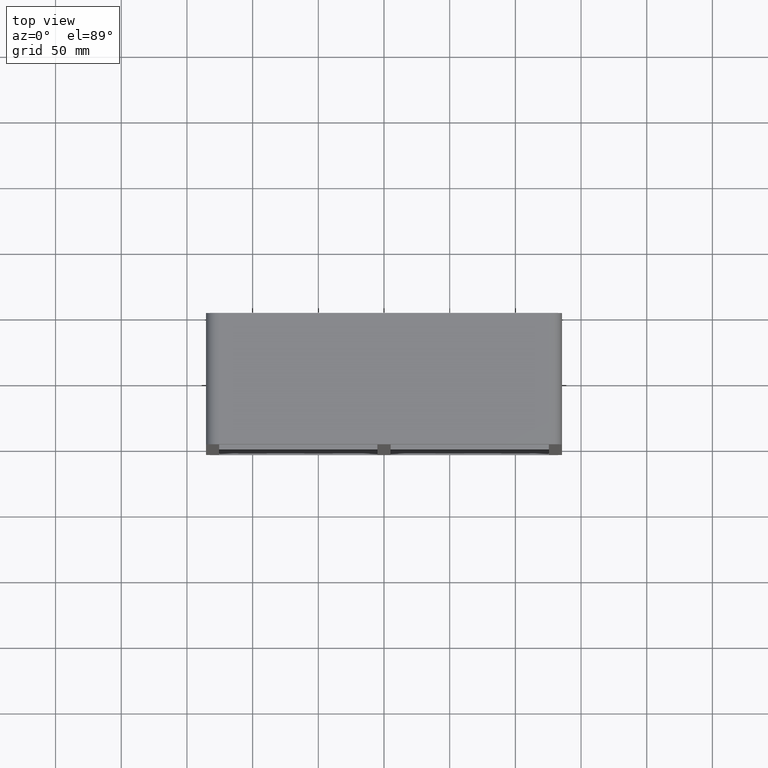
[diagram: clean part render]
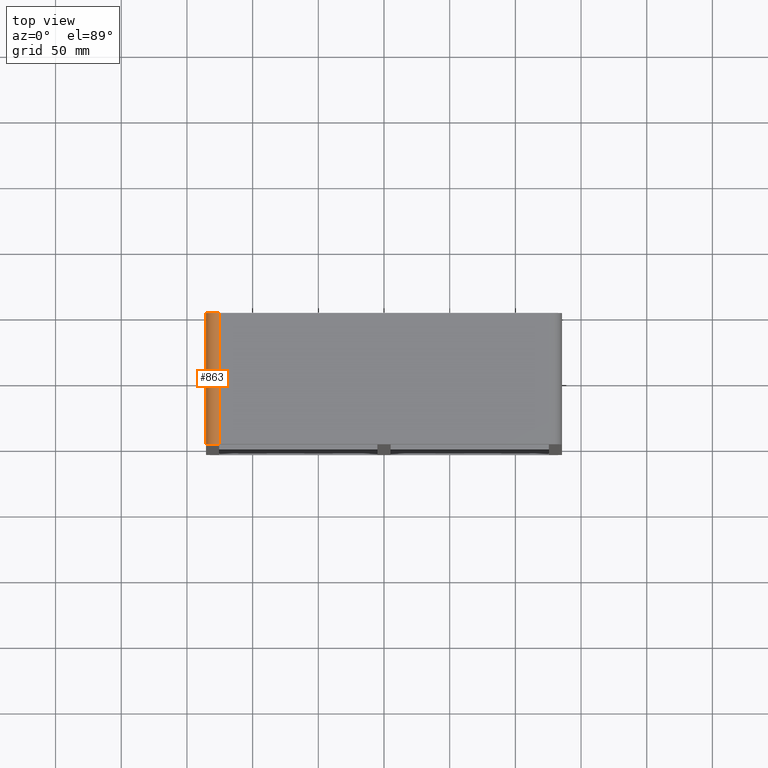
[diagram: same view with one face highlighted and labeled with its STEP entity id]
A machine part, top view. The second image highlights one B-rep face of the part: STEP entity #863.
In plain terms, the highlighted cylindrical surface (edge-blend (fillet) strip) has radius 10 mm, axis along (0, 1, 0).
Its self-contained STEP definition (entity closure, byte-faithful):
#337=CARTESIAN_POINT('',(-135.5,97.0,228.0));
#338=VERTEX_POINT('',#337);
#345=CARTESIAN_POINT('',(-125.5,97.0,238.0));
#346=VERTEX_POINT('',#345);
#347=CARTESIAN_POINT('',(-125.5,97.0,228.0));
#348=DIRECTION('',(0.0,-1.0,0.0));
#349=DIRECTION('',(-0.707106781186547,0.0,0.707106781186547));
#350=AXIS2_PLACEMENT_3D('',#347,#348,#349);
#351=CIRCLE('',#350,9.999999999999998);
#352=EDGE_CURVE('',#346,#338,#351,.T.);
#719=CARTESIAN_POINT('',(-125.5,-3.0,238.0));
#720=VERTEX_POINT('',#719);
#727=CARTESIAN_POINT('',(-135.5,-3.0,228.0));
#728=VERTEX_POINT('',#727);
#729=CARTESIAN_POINT('',(-125.5,-3.0,228.0));
#730=DIRECTION('',(0.0,1.0,0.0));
#731=DIRECTION('',(-0.707106781186547,0.0,0.707106781186547));
#732=AXIS2_PLACEMENT_3D('',#729,#730,#731);
#733=CIRCLE('',#732,9.999999999999998);
#734=EDGE_CURVE('',#728,#720,#733,.T.);
#837=CARTESIAN_POINT('',(-125.5,-3.0,238.0));
#838=DIRECTION('',(0.0,1.0,0.0));
#839=VECTOR('',#838,100.0);
#840=LINE('',#837,#839);
#841=EDGE_CURVE('',#720,#346,#840,.T.);
#847=CARTESIAN_POINT('',(-125.5,0.0,228.0));
#848=DIRECTION('',(0.0,1.0,0.0));
#849=DIRECTION('',(-0.707106781186547,0.0,0.707106781186547));
#850=AXIS2_PLACEMENT_3D('',#847,#848,#849);
#851=CYLINDRICAL_SURFACE('',#850,10.0);
#852=ORIENTED_EDGE('',*,*,#352,.T.);
#853=CARTESIAN_POINT('',(-135.5,97.0,228.0));
#854=DIRECTION('',(0.0,-1.0,0.0));
#855=VECTOR('',#854,100.0);
#856=LINE('',#853,#855);
#857=EDGE_CURVE('',#338,#728,#856,.T.);
#858=ORIENTED_EDGE('',*,*,#857,.T.);
#859=ORIENTED_EDGE('',*,*,#734,.T.);
#860=ORIENTED_EDGE('',*,*,#841,.T.);
#861=EDGE_LOOP('',(#852,#858,#859,#860));
#862=FACE_OUTER_BOUND('',#861,.T.);
#863=ADVANCED_FACE('',(#862),#851,.T.);